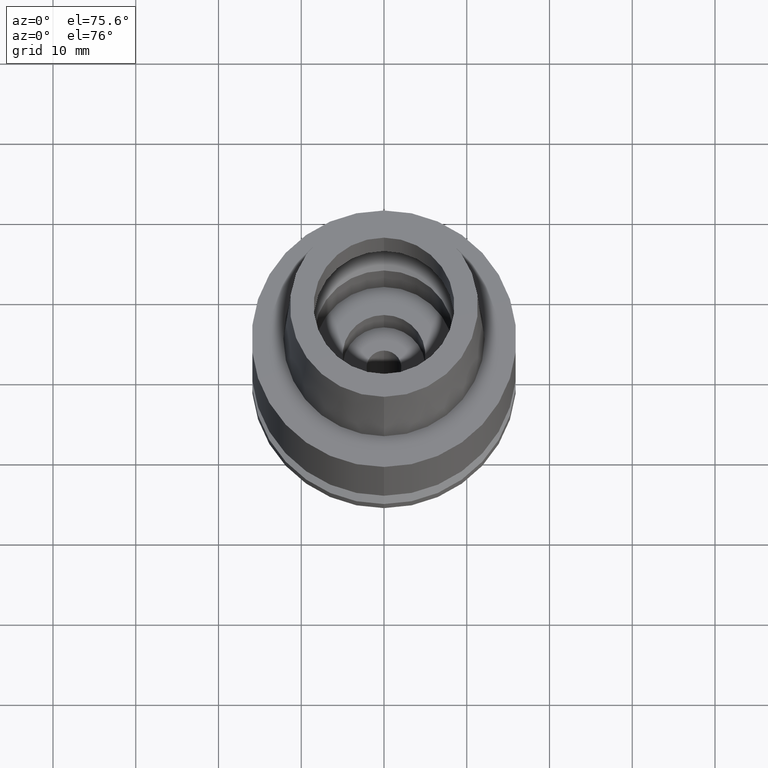
[diagram: clean part render]
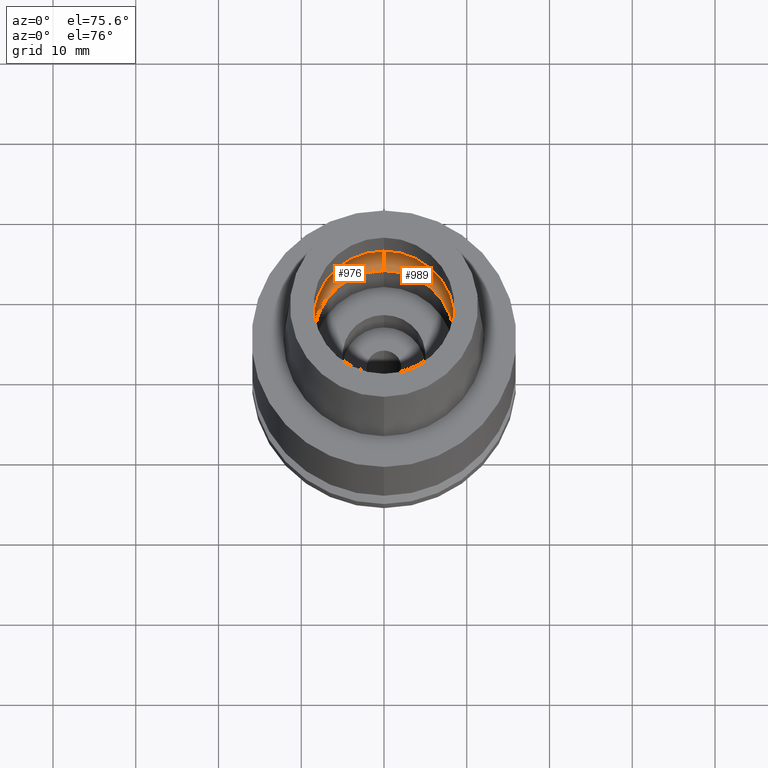
[diagram: same view with one multi-face feature highlighted, each face labeled with its STEP entity id]
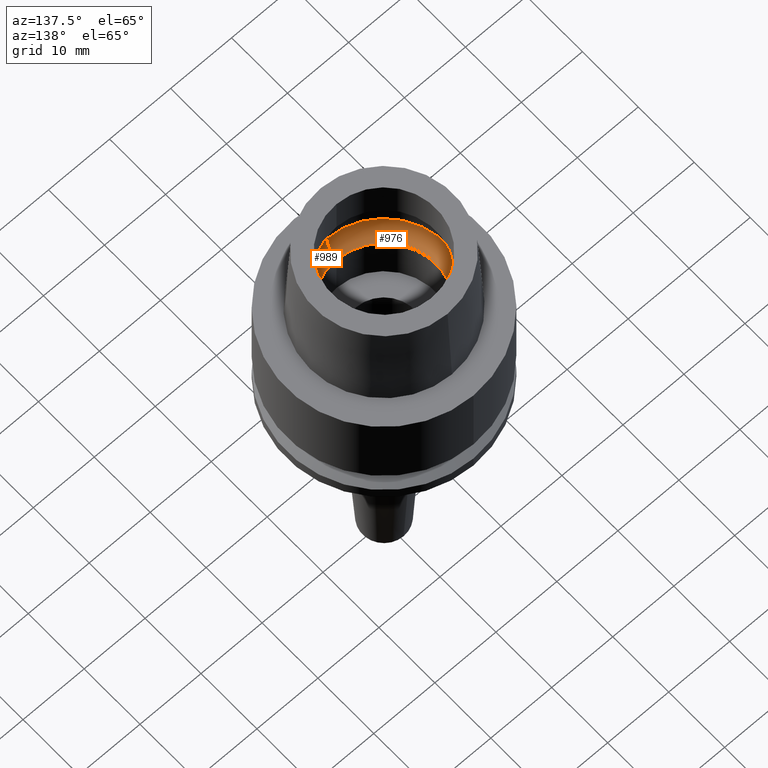
[diagram: same view with one multi-face feature highlighted, each face labeled with its STEP entity id]
A machine part, auxiliary view. The highlighted faces form ONE feature: a constant-radius fillet chain: 2 tangent blend faces with common blend radius 4 mm. The faces share edges in the B-rep.
A second angle (auxiliary view) of the same feature is appended — it is thin or edge-on in the first view.
Their STEP definitions:
[1] entity #976 (Torus):
#138=CARTESIAN_POINT('',(0.E0,1.265758192195E-14,4.981086116927E-2));
#139=DIRECTION('',(0.E0,0.E0,1.E0));
#140=DIRECTION('',(0.E0,1.E0,0.E0));
#141=AXIS2_PLACEMENT_3D('',#138,#139,#140);
#146=CARTESIAN_POINT('',(0.E0,-6.25E0,3.357E0));
#147=DIRECTION('',(-1.E0,0.E0,0.E0));
#148=DIRECTION('',(0.E0,-5.625E-1,-8.267972847077E-1));
#149=AXIS2_PLACEMENT_3D('',#146,#147,#148);
#154=CARTESIAN_POINT('',(0.E0,1.265758192195E-14,3.357E0));
#155=DIRECTION('',(0.E0,0.E0,-1.E0));
#156=DIRECTION('',(0.E0,-1.E0,0.E0));
#157=AXIS2_PLACEMENT_3D('',#154,#155,#156);
#162=CARTESIAN_POINT('',(0.E0,6.25E0,3.357E0));
#163=DIRECTION('',(1.E0,0.E0,0.E0));
#164=DIRECTION('',(0.E0,5.625E-1,-8.267972847077E-1));
#165=AXIS2_PLACEMENT_3D('',#162,#163,#164);
#740=CARTESIAN_POINT('',(0.E0,1.025E1,3.357E0));
#741=VERTEX_POINT('',#740);
#742=CARTESIAN_POINT('',(0.E0,-1.025E1,3.357E0));
#743=VERTEX_POINT('',#742);
#744=CARTESIAN_POINT('',(0.E0,8.5E0,4.981086116927E-2));
#745=VERTEX_POINT('',#744);
#746=CARTESIAN_POINT('',(0.E0,-8.5E0,4.981086116927E-2));
#747=VERTEX_POINT('',#746);
#962=CARTESIAN_POINT('',(0.E0,1.265758192195E-14,3.357E0));
#963=DIRECTION('',(0.E0,0.E0,-1.E0));
#964=DIRECTION('',(0.E0,-1.E0,0.E0));
#965=AXIS2_PLACEMENT_3D('',#962,#963,#964);
#966=TOROIDAL_SURFACE('',#965,6.25E0,4.E0);
#968=ORIENTED_EDGE('',*,*,#967,.F.);
#970=ORIENTED_EDGE('',*,*,#969,.T.);
#972=ORIENTED_EDGE('',*,*,#971,.T.);
#973=ORIENTED_EDGE('',*,*,#955,.T.);
#974=EDGE_LOOP('',(#968,#970,#972,#973));
#975=FACE_OUTER_BOUND('',#974,.F.);
#142=CIRCLE('',#141,8.5E0);
#150=CIRCLE('',#149,4.E0);
#158=CIRCLE('',#157,1.025E1);
#166=CIRCLE('',#165,4.E0);
#955=EDGE_CURVE('',#743,#741,#158,.T.);
#967=EDGE_CURVE('',#745,#741,#166,.T.);
#969=EDGE_CURVE('',#745,#747,#142,.T.);
#971=EDGE_CURVE('',#747,#743,#150,.T.);
#976=ADVANCED_FACE('',(#975),#966,.F.);
[2] entity #989 (Torus):
#146=CARTESIAN_POINT('',(0.E0,-6.25E0,3.357E0));
#147=DIRECTION('',(-1.E0,0.E0,0.E0));
#148=DIRECTION('',(0.E0,-5.625E-1,-8.267972847077E-1));
#149=AXIS2_PLACEMENT_3D('',#146,#147,#148);
#162=CARTESIAN_POINT('',(0.E0,6.25E0,3.357E0));
#163=DIRECTION('',(1.E0,0.E0,0.E0));
#164=DIRECTION('',(0.E0,5.625E-1,-8.267972847077E-1));
#165=AXIS2_PLACEMENT_3D('',#162,#163,#164);
#170=CARTESIAN_POINT('',(0.E0,1.265758192195E-14,3.357E0));
#171=DIRECTION('',(0.E0,0.E0,-1.E0));
#172=DIRECTION('',(0.E0,1.E0,0.E0));
#173=AXIS2_PLACEMENT_3D('',#170,#171,#172);
#178=CARTESIAN_POINT('',(0.E0,1.265758192195E-14,4.981086116927E-2));
#179=DIRECTION('',(0.E0,0.E0,1.E0));
#180=DIRECTION('',(0.E0,-1.E0,0.E0));
#181=AXIS2_PLACEMENT_3D('',#178,#179,#180);
#740=CARTESIAN_POINT('',(0.E0,1.025E1,3.357E0));
#741=VERTEX_POINT('',#740);
#742=CARTESIAN_POINT('',(0.E0,-1.025E1,3.357E0));
#743=VERTEX_POINT('',#742);
#744=CARTESIAN_POINT('',(0.E0,8.5E0,4.981086116927E-2));
#745=VERTEX_POINT('',#744);
#746=CARTESIAN_POINT('',(0.E0,-8.5E0,4.981086116927E-2));
#747=VERTEX_POINT('',#746);
#977=CARTESIAN_POINT('',(0.E0,1.265758192195E-14,3.357E0));
#978=DIRECTION('',(0.E0,0.E0,-1.E0));
#979=DIRECTION('',(0.E0,-1.E0,0.E0));
#980=AXIS2_PLACEMENT_3D('',#977,#978,#979);
#981=TOROIDAL_SURFACE('',#980,6.25E0,4.E0);
#982=ORIENTED_EDGE('',*,*,#967,.T.);
#983=ORIENTED_EDGE('',*,*,#944,.T.);
#984=ORIENTED_EDGE('',*,*,#971,.F.);
#986=ORIENTED_EDGE('',*,*,#985,.T.);
#987=EDGE_LOOP('',(#982,#983,#984,#986));
#988=FACE_OUTER_BOUND('',#987,.F.);
#150=CIRCLE('',#149,4.E0);
#166=CIRCLE('',#165,4.E0);
#174=CIRCLE('',#173,1.025E1);
#182=CIRCLE('',#181,8.5E0);
#944=EDGE_CURVE('',#741,#743,#174,.T.);
#967=EDGE_CURVE('',#745,#741,#166,.T.);
#971=EDGE_CURVE('',#747,#743,#150,.T.);
#985=EDGE_CURVE('',#747,#745,#182,.T.);
#989=ADVANCED_FACE('',(#988),#981,.F.);